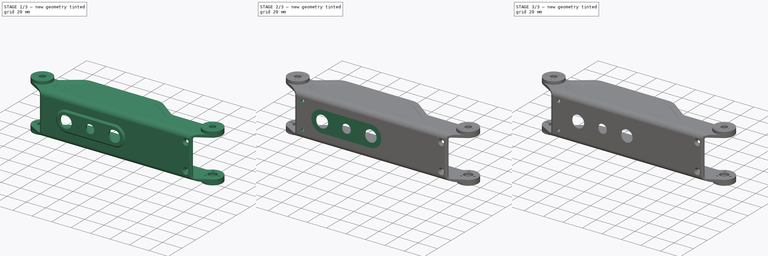
[diagram: build sequence overview — one tinted view per stage of 3, left to right]
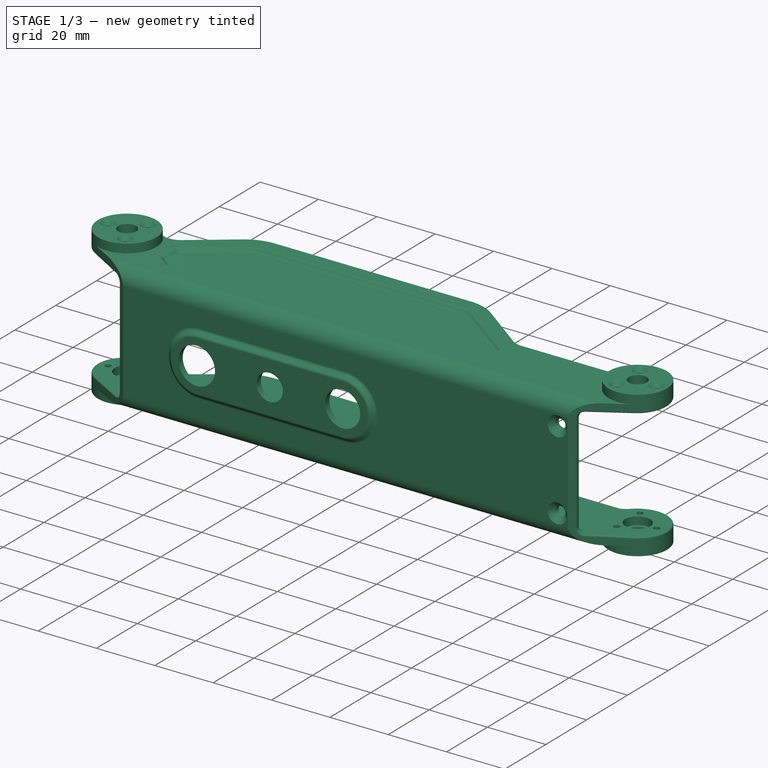
[diagram: stage 1 of 3 — iso view after this stage's code; geometry added in this stage tinted green]
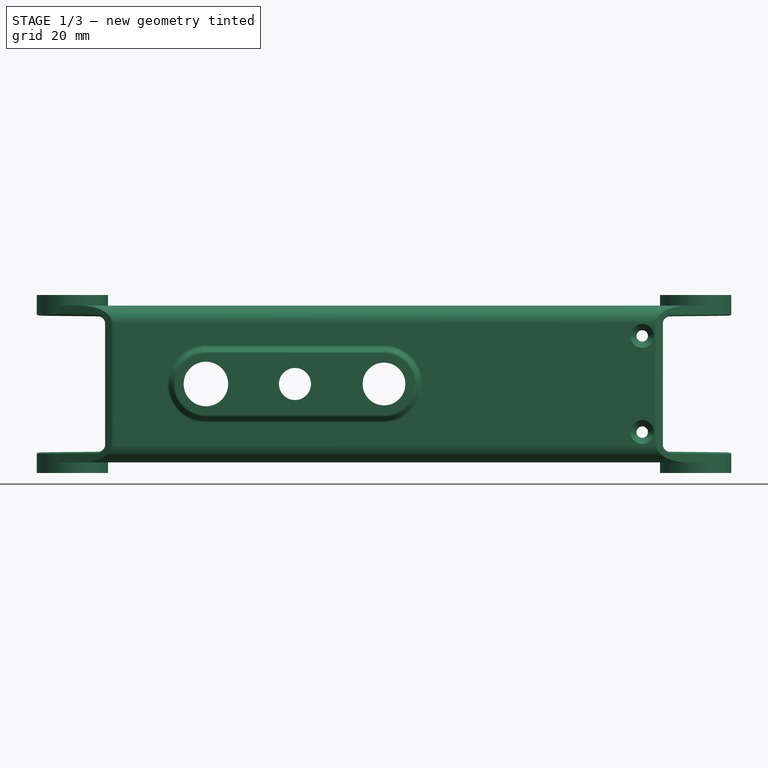
[diagram: stage 1 of 3 — front view after this stage's code; geometry added in this stage tinted green]
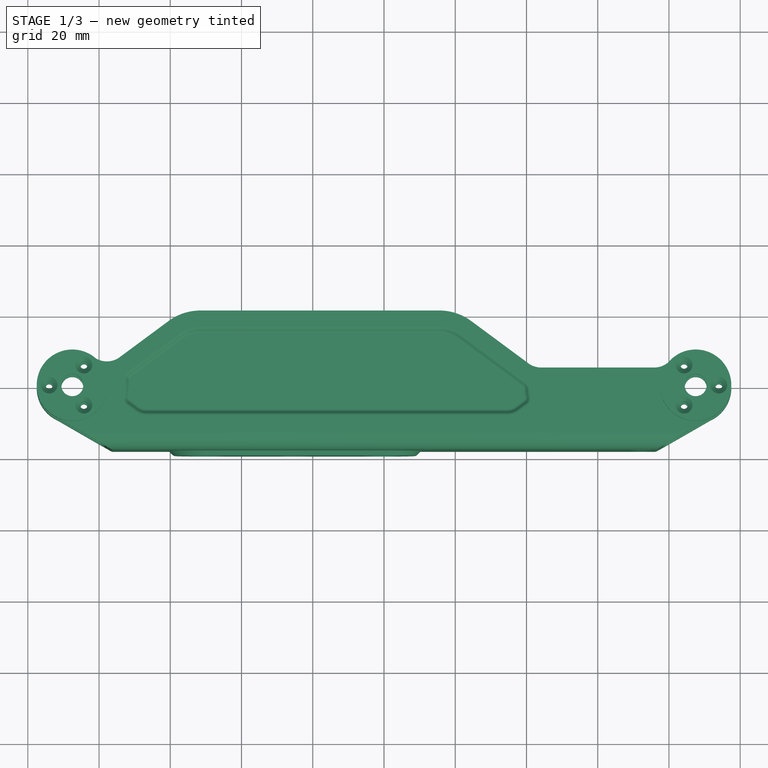
[diagram: stage 1 of 3 — top view after this stage's code; geometry added in this stage tinted green]
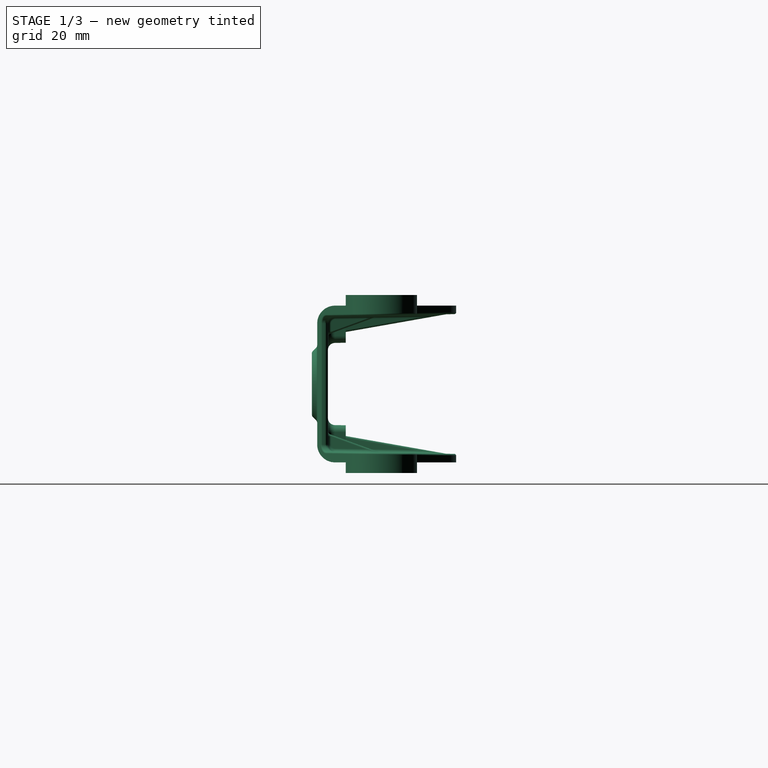
[diagram: stage 1 of 3 — right view after this stage's code; geometry added in this stage tinted green]
FCSTD DOCUMENT  (FreeCAD 0.21R33668 +26 (Git))
Label: link3_3
License: All rights reserved
LicenseURL: https://en.wikipedia.org/wiki/All_rights_reserved
objects: Sketcher::SketchObject×6, PartDesign::Pocket×5, Part::Feature×1, PartDesign::FeatureBase×1, PartDesign::Pad×1, PartDesign::Body×1
note: 21 computed .brp shape members not serialized (recipe doc carries the construction recipe); baked Part::Feature solids carry a one-line shape summary decoded from their .brp

FEATURE [Part::Feature] Part__Feature  label="2205007000-20210110001_5___"
  shape: bbox 198.3 x 43.7 x 50.02 mm, 526 faces (baked)
FEATURE [PartDesign::FeatureBase] BaseFeature
  BaseFeature = -> Part__Feature
FEATURE [Sketcher::SketchObject] Sketch
  ExternalGeometry = -> [BaseFeature]
  FullyConstrained = false
  MapMode = 5
  Placement = pos=(0,0,25) rot=(0,0,1;0rad)
  Support = -> [BaseFeature]
  sketch-geometry (2):
    g0: Circle CenterX=-87.5006 CenterY=-0.000839 CenterZ=0 NormalX=0 NormalY=0 NormalZ=1 AngleXU=0 Radius=3.1
    g1: Circle CenterX=87.4995 CenterY=-0.000901 CenterZ=0 NormalX=0 NormalY=0 NormalZ=1 AngleXU=0 Radius=3.1
  constraints (2):
    c: Diameter(g0) = 6.2
    c: Diameter(g1) = 6.2
FEATURE [PartDesign::Pocket] Pocket
  BaseFeature = -> BaseFeature
  Direction = (0,0,-1)
  Length = 5
  Length2 = 5
  Profile = -> Sketch
  ReferenceAxis = -> Sketch [N_Axis]
  Type = 1
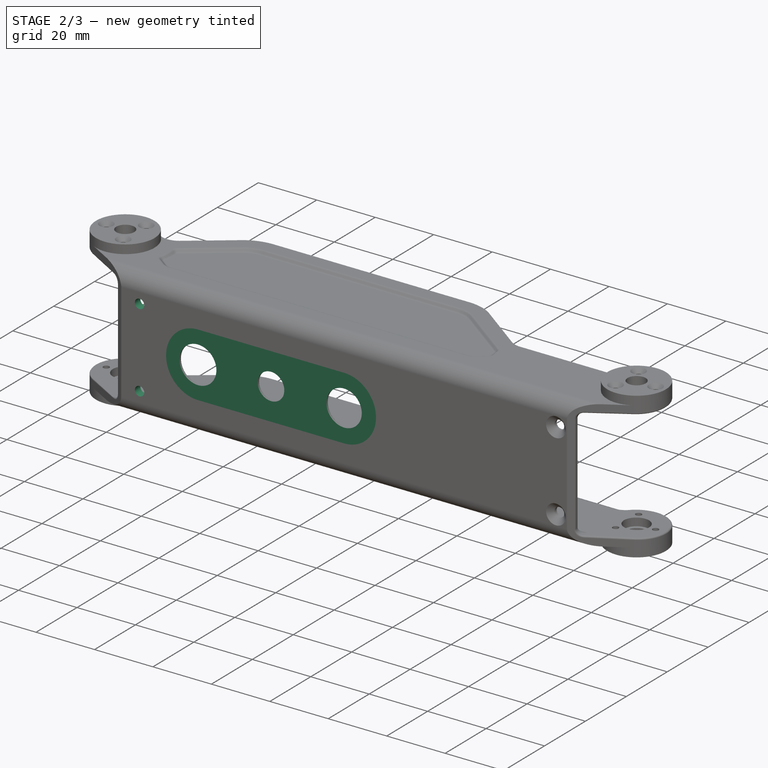
[diagram: stage 2 of 3 — iso view after this stage's code; geometry added in this stage tinted green]
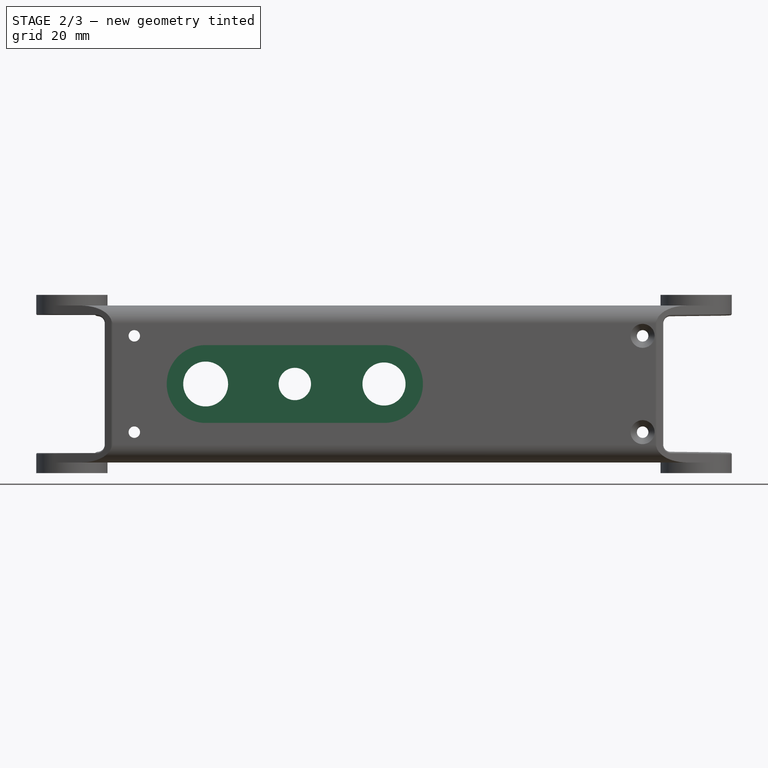
[diagram: stage 2 of 3 — front view after this stage's code; geometry added in this stage tinted green]
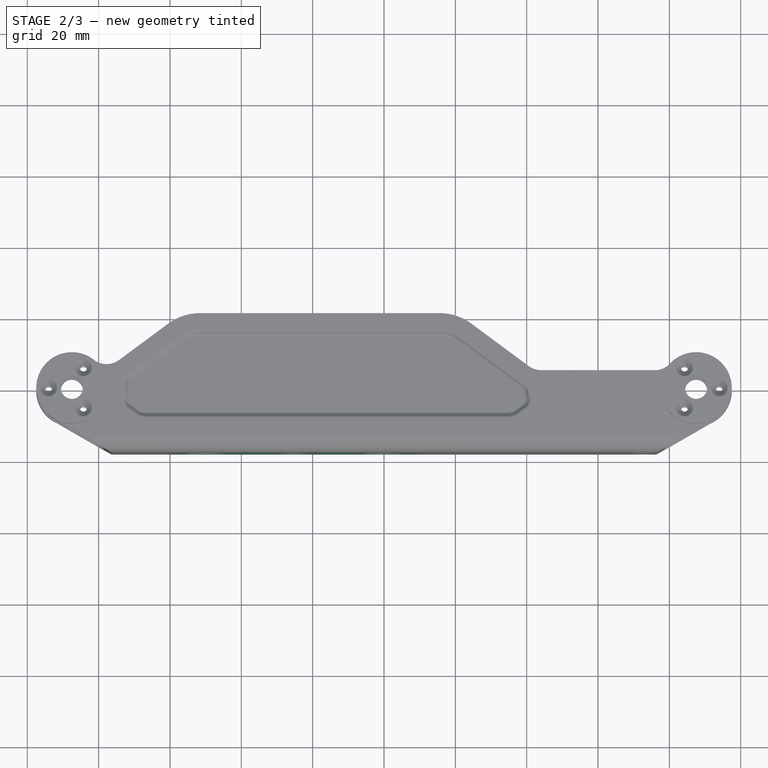
[diagram: stage 2 of 3 — top view after this stage's code; geometry added in this stage tinted green]
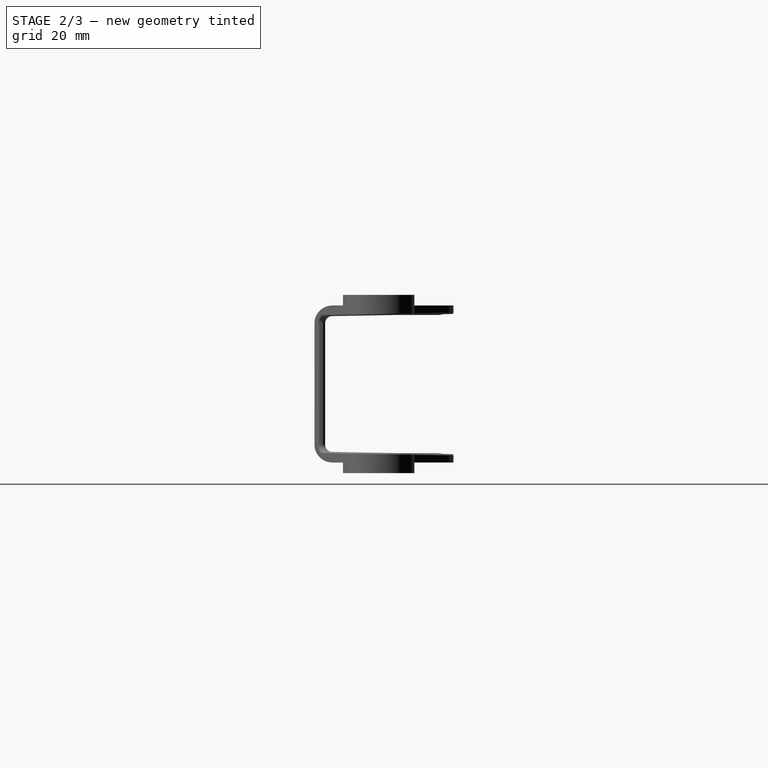
[diagram: stage 2 of 3 — right view after this stage's code; geometry added in this stage tinted green]
FEATURE [Sketcher::SketchObject] Sketch001
  ExternalGeometry = -> [Pocket]
  FullyConstrained = true
  MapMode = 5
  Placement = pos=(0,-18,0) rot=(1,0,0;1.5708rad)
  Support = -> [Pocket]
  sketch-geometry (2):
    g0: Circle CenterX=-70 CenterY=13.5 CenterZ=0 NormalX=0 NormalY=0 NormalZ=1 AngleXU=0 Radius=1.6
    g1: Circle CenterX=-70 CenterY=-13.5 CenterZ=0 NormalX=0 NormalY=0 NormalZ=1 AngleXU=0 Radius=1.6
  constraints (7):
    c: Horizontal(g0,g-4)
    c: Horizontal(g-3,g1)
    c: Vertical(g0,g1)
    c: Diameter(g0) = 3.2
    c: Equal(g1,g0)
    c: DistanceX(g-1,g-4) = 72.5
    c: DistanceX(g0,g-1) = 70
FEATURE [PartDesign::Pocket] Pocket001
  BaseFeature = -> Pocket
  Direction = (0,1,-2e-16)
  Length = 5
  Length2 = 5
  Profile = -> Sketch001
  ReferenceAxis = -> Sketch001 [N_Axis]
  Type = 1
FEATURE [Sketcher::SketchObject] Sketch002
  ExternalGeometry = -> [Pocket001]
  FullyConstrained = false
  MapMode = 5
  Placement = pos=(0,21,0) rot=(0,0.707107,0.707107;3.14159rad)
  Support = -> [Pocket001]
  sketch-geometry (4):
    g0: LineSegment StartX=-75.881 StartY=19.3405 StartZ=0 EndX=127.247 EndY=19.3405 EndZ=0
    g1: LineSegment StartX=127.247 StartY=19.3405 StartZ=0 EndX=127.247 EndY=-19.3405 EndZ=0
    g2: LineSegment StartX=127.247 StartY=-19.3405 StartZ=0 EndX=-75.881 EndY=-19.3405 EndZ=0
    g3: LineSegment StartX=-75.881 StartY=-19.3405 StartZ=0 EndX=-75.881 EndY=19.3405 EndZ=0
  constraints (10):
    c: Coincident(g0,g1)
    c: Coincident(g1,g2)
    c: Coincident(g2,g3)
    c: Coincident(g3,g0)
    c: Horizontal(g0)
    c: Horizontal(g2)
    c: Vertical(g1)
    c: Vertical(g3)
    c: Coincident(g0,g-3)
    c: Horizontal(g2,g-4)
FEATURE [PartDesign::Pocket] Pocket002
  BaseFeature = -> Pocket001
  Direction = (0,-1,2e-16)
  Length = 0
  Length2 = 5
  Profile = -> Sketch002
  ReferenceAxis = -> Sketch002 [N_Axis]
  Type = 3
  UpToFace = -> Pocket001 [Face435]
FEATURE [Sketcher::SketchObject] Sketch003
  FullyConstrained = false
  MapMode = 5
  Placement = pos=(0,-18,0) rot=(1,0,0;1.5708rad)
  Support = -> [Pocket002]
  sketch-geometry (4):
    g0: LineSegment StartX=-108.076 StartY=32.4103 StartZ=0 EndX=134.825 EndY=32.4103 EndZ=0
    g1: LineSegment StartX=134.825 StartY=32.4103 StartZ=0 EndX=134.825 EndY=-33.364 EndZ=0
    g2: LineSegment StartX=134.825 StartY=-33.364 StartZ=0 EndX=-108.076 EndY=-33.364 EndZ=0
    g3: LineSegment StartX=-108.076 StartY=-33.364 StartZ=0 EndX=-108.076 EndY=32.4103 EndZ=0
  constraints (8):
    c: Coincident(g0,g1)
    c: Coincident(g1,g2)
    c: Coincident(g2,g3)
    c: Coincident(g3,g0)
    c: Horizontal(g0)
    c: Horizontal(g2)
    c: Vertical(g1)
    c: Vertical(g3)
FEATURE [PartDesign::Pocket] Pocket003
  BaseFeature = -> Pocket002
  Direction = (0,1,-2e-16)
  Length = 5
  Length2 = 5
  Profile = -> Sketch003
  ReferenceAxis = -> Sketch003 [N_Axis]
  Reversed = true
  Type = 0
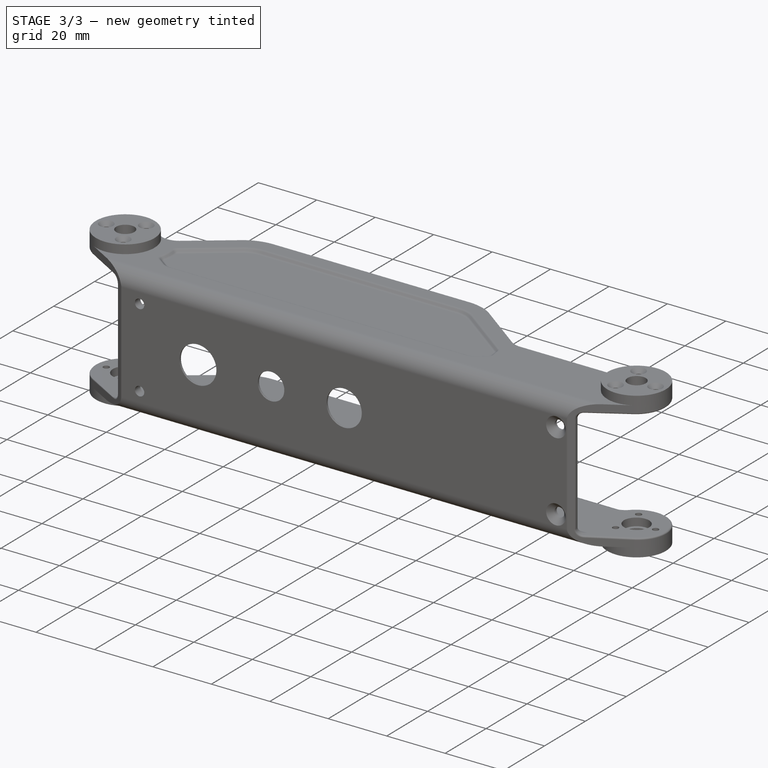
[diagram: stage 3 of 3 — iso view after this stage's code; geometry added in this stage tinted green]
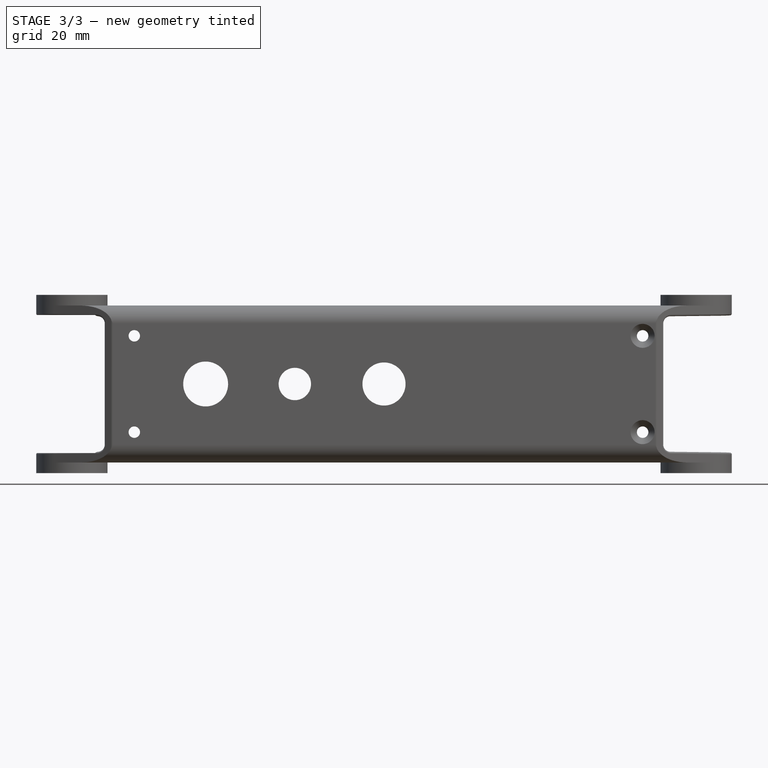
[diagram: stage 3 of 3 — front view after this stage's code; geometry added in this stage tinted green]
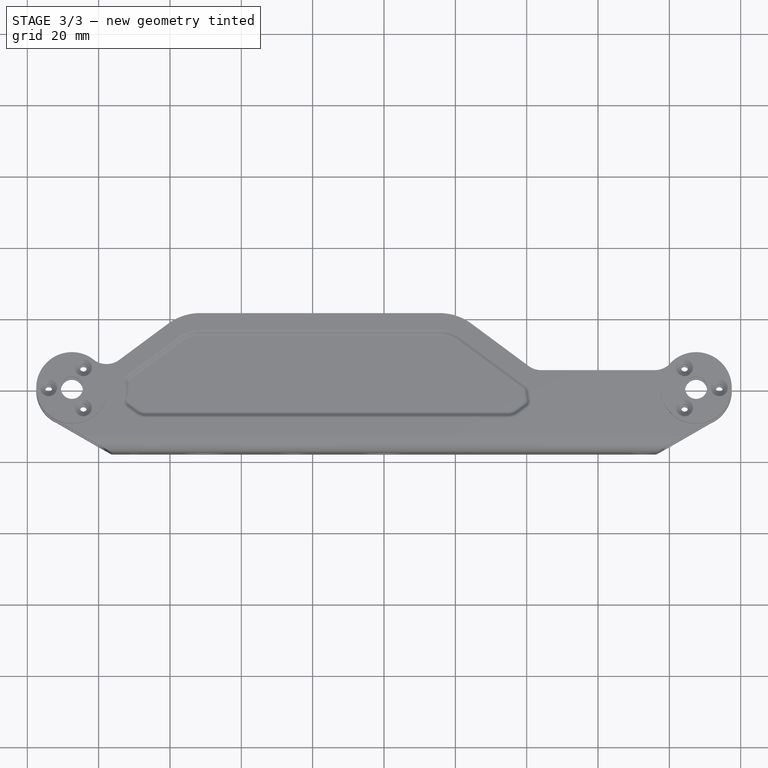
[diagram: stage 3 of 3 — top view after this stage's code; geometry added in this stage tinted green]
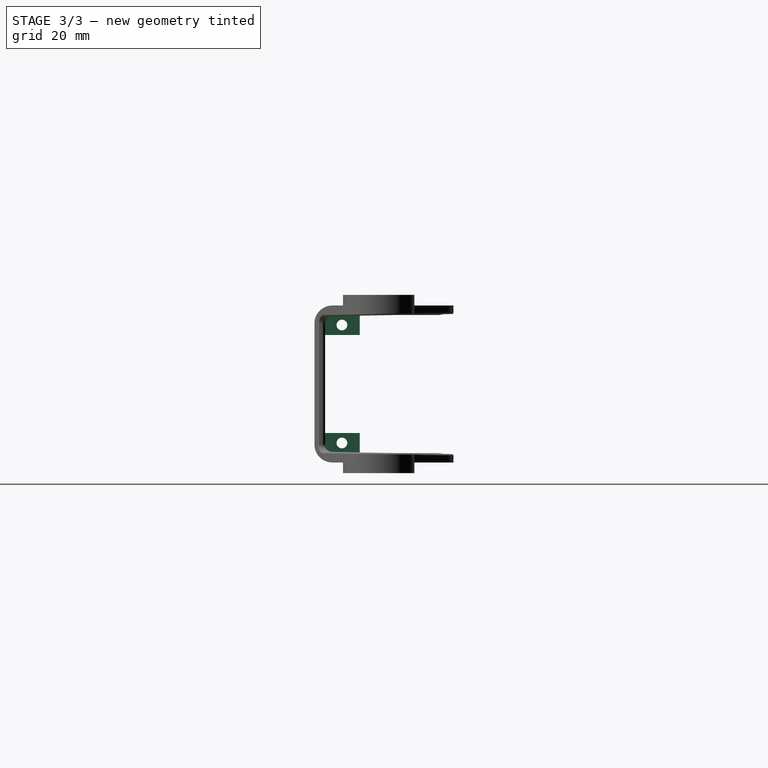
[diagram: stage 3 of 3 — right view after this stage's code; geometry added in this stage tinted green]
FEATURE [Sketcher::SketchObject] Sketch004
  ExternalGeometry = -> [Pocket003]
  FullyConstrained = true
  MapMode = 5
  Placement = pos=(0,-15.3,0) rot=(0,0.707107,0.707107;3.14159rad)
  Support = -> [Pocket003]
  sketch-geometry (8):
    g0: LineSegment StartX=-5 StartY=19.3405 StartZ=0 EndX=5 EndY=19.3405 EndZ=0
    g1: LineSegment StartX=5 StartY=19.3405 StartZ=0 EndX=5 EndY=13.7213 EndZ=0
    g2: LineSegment StartX=5 StartY=13.7213 StartZ=0 EndX=-5 EndY=13.7213 EndZ=0
    g3: LineSegment StartX=-5 StartY=13.7213 StartZ=0 EndX=-5 EndY=19.3405 EndZ=0
    g4: LineSegment StartX=-5 StartY=-13.7213 StartZ=0 EndX=5 EndY=-13.7213 EndZ=0
    g5: LineSegment StartX=5 StartY=-13.7213 StartZ=0 EndX=5 EndY=-19.3405 EndZ=0
    g6: LineSegment StartX=5 StartY=-19.3405 StartZ=0 EndX=-5 EndY=-19.3405 EndZ=0
    g7: LineSegment StartX=-5 StartY=-19.3405 StartZ=0 EndX=-5 EndY=-13.7213 EndZ=0
  constraints (24):
    c: Coincident(g0,g1)
    c: Coincident(g1,g2)
    c: Coincident(g2,g3)
    c: Coincident(g3,g0)
    c: Horizontal(g0)
    c: Horizontal(g2)
    c: Vertical(g1)
    c: Vertical(g3)
    c: PointOnObject(g0,g-3)
    c: DistanceX(g-1,g1) = 5
    c: DistanceX(g2,g-1) = 5
    c: Horizontal(g1,g-4)
    c: Coincident(g4,g5)
    c: Coincident(g5,g6)
    c: Coincident(g6,g7)
    c: Coincident(g7,g4)
    c: Horizontal(g4)
    c: Horizontal(g6)
    c: Vertical(g5)
    c: Vertical(g7)
    c: Horizontal(g5,g-5)
    c: DistanceX(g-6,g4) = 5
    c: DistanceX(g4,g-6) = 5
    c: Horizontal(g4,g-6)
FEATURE [PartDesign::Pad] Pad
  BaseFeature = -> Pocket003
  Direction = (0,1,-2e-16)
  Length = 10
  Length2 = 10
  Profile = -> Sketch004
  ReferenceAxis = -> Sketch004 [N_Axis]
  Type = 0
FEATURE [Sketcher::SketchObject] Sketch005
  ExternalGeometry = -> [Pad]
  FullyConstrained = true
  MapMode = 5
  Placement = pos=(-5,0,0) rot=(0.57735,-0.57735,-0.57735;2.0944rad)
  Support = -> [Pad]
  sketch-geometry (2):
    g0: Circle CenterX=10.3 CenterY=16.5309 CenterZ=0 NormalX=0 NormalY=0 NormalZ=1 AngleXU=0 Radius=1.5
    g1: Circle CenterX=10.3 CenterY=-16.5309 CenterZ=0 NormalX=0 NormalY=0 NormalZ=1 AngleXU=0 Radius=1.5
  constraints (8):
    c: DistanceY(g-4,g-4) = 5.61921
    c: Diameter(g0) = 3
    c: DistanceX(g-3,g-3) = 10
    c: DistanceX(g-4,g0) = 5
    c: DistanceY(g-4,g0) = 2.8096
    c: Diameter(g1) = 3
    c: Vertical(g1,g0)
    c: DistanceY(g1,g-6) = 2.8096
FEATURE [PartDesign::Pocket] Pocket004
  BaseFeature = -> Pad
  Direction = (1,0,0)
  Length = 5
  Length2 = 5
  Profile = -> Sketch005
  ReferenceAxis = -> Sketch005 [N_Axis]
  Type = 1
FEATURE [PartDesign::Body] Body
  BaseFeature = -> Part__Feature
  Group = -> [BaseFeature,Sketch,Pocket,Sketch001,Pocket001,Sketch002,Pocket002,Sketch003,Pocket003,Sketch004,Pad,Sketch005,Pocket004]
  Origin = -> Origin
  Tip = -> Pocket004
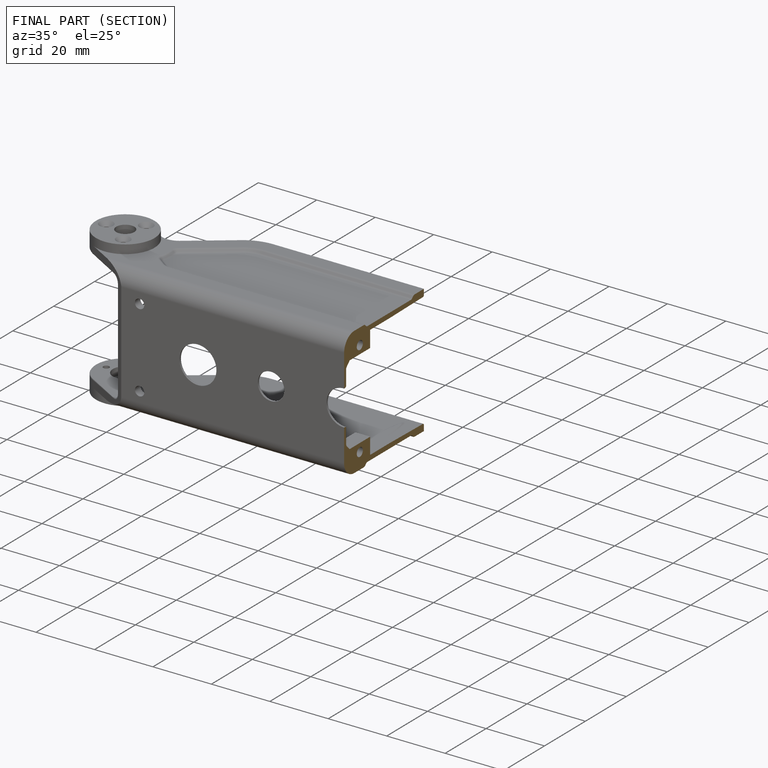
[diagram: finished part — half-section view (interior)]
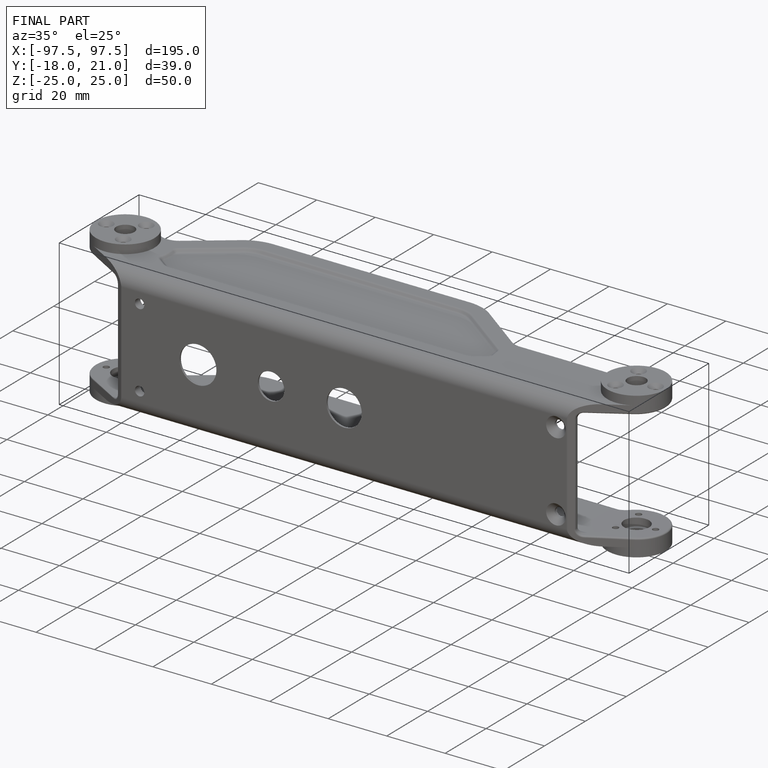
[diagram: finished part — iso view with bounding-box wireframe]
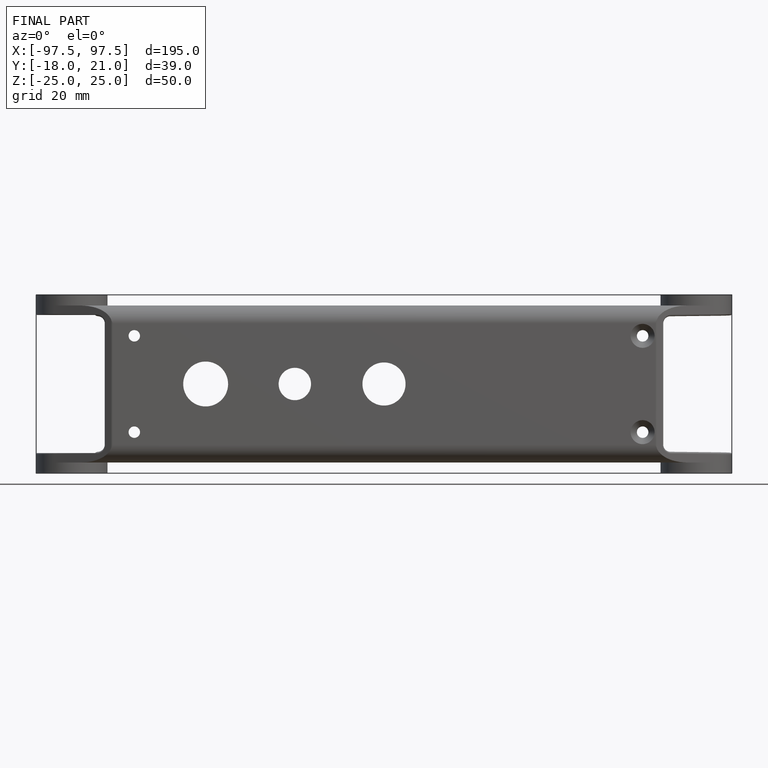
[diagram: finished part — front view with bounding-box wireframe]
